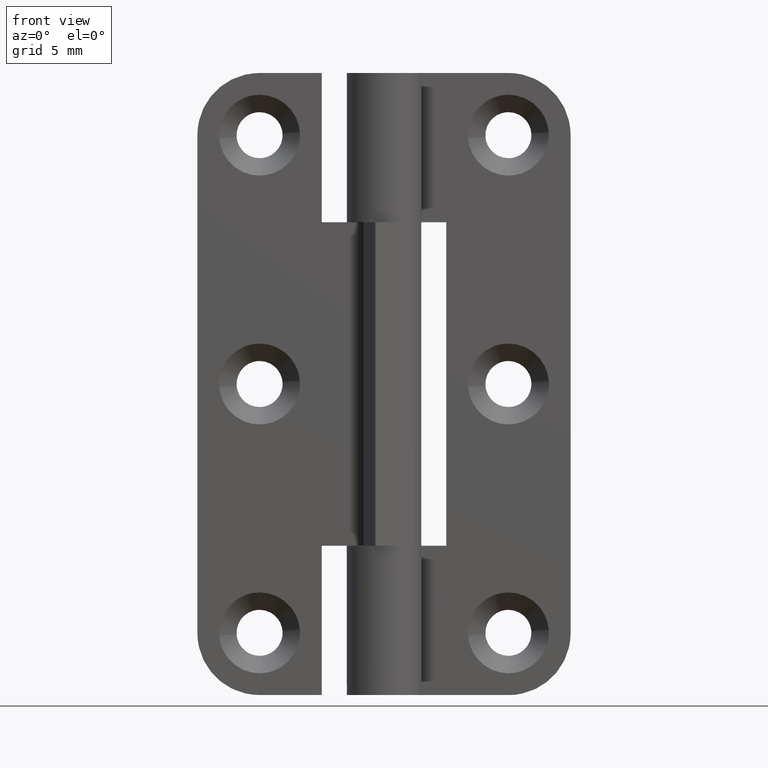
[diagram: clean part render]
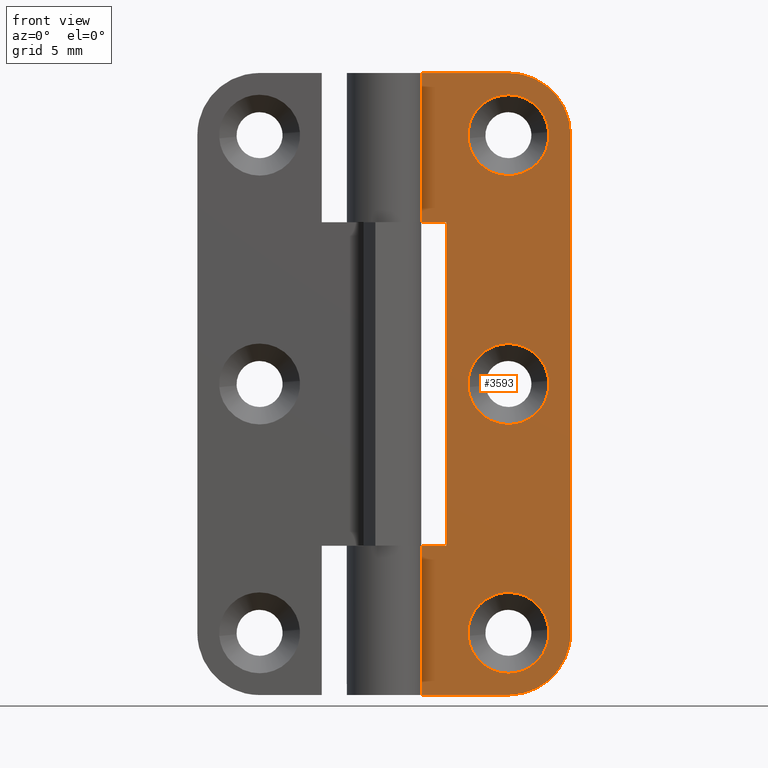
[diagram: same view with one face highlighted and labeled with its STEP entity id]
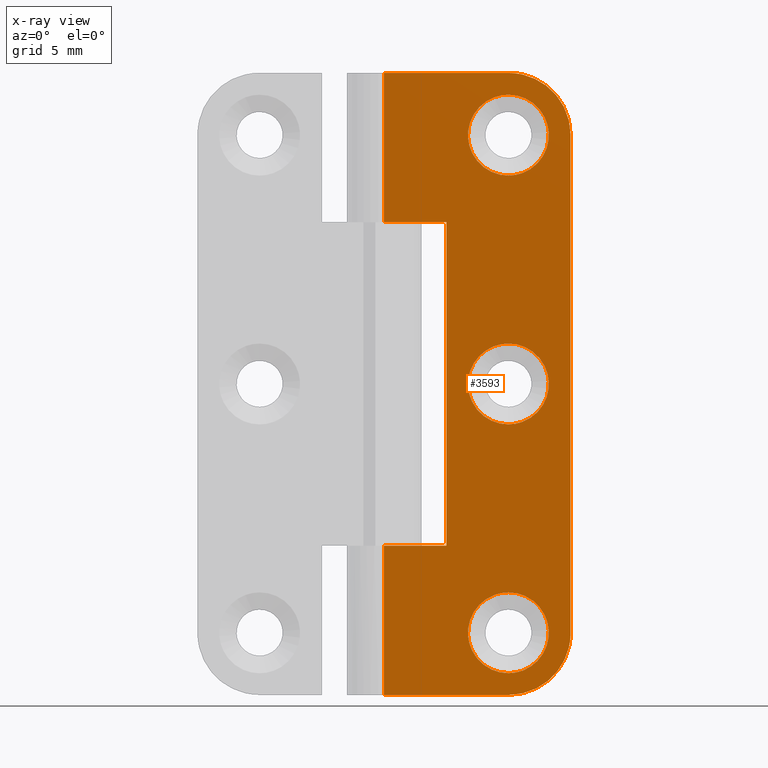
[diagram: x-ray of the same camera — body ghosted, the highlighted face saturated]
A machine part, front view. The second image highlights one B-rep face of the part: STEP entity #3593.
The next image is the same camera in x-ray: the body ghosted, the highlighted face saturated — about 0% of this face is hidden behind the body in this view.
In plain terms, the highlighted face is a freeform B-spline surface patch.
Its self-contained STEP definition (entity closure, byte-faithful):
#2128=CARTESIAN_POINT('',(13.239981334640129,1.499999999981075,45.254992061261852));
#2129=VERTEX_POINT('',#2128);
#2135=CARTESIAN_POINT('',(10.0,1.500000000000000,48.250000000000000));
#2136=VERTEX_POINT('',#2135);
#2137=CARTESIAN_POINT('',(10.0,1.500000000000000,48.250000000000000));
#2138=CARTESIAN_POINT('',(13.004269097619700,1.500000000000001,48.250000000000007));
#2139=CARTESIAN_POINT('',(13.239981334640134,1.499999999981076,45.254992061261845));
#2147=(BOUNDED_CURVE()B_SPLINE_CURVE(2,(#2137,#2138,#2139),.UNSPECIFIED.,.F.,.U.)B_SPLINE_CURVE_WITH_KNOTS((3,3),(0.0,0.236331300617438),.UNSPECIFIED.)CURVE()GEOMETRIC_REPRESENTATION_ITEM()RATIONAL_B_SPLINE_CURVE((1.0,0.723120658623156,0.969723356139825))REPRESENTATION_ITEM(''));
#2148=EDGE_CURVE('',#2136,#2129,#2147,.T.);
#2150=CARTESIAN_POINT('',(6.760018665359869,1.499999999981075,44.745007938738162));
#2151=VERTEX_POINT('',#2150);
#2152=CARTESIAN_POINT('',(6.760018665359869,1.499999999981076,44.745007938738155));
#2153=CARTESIAN_POINT('',(6.750000000000002,1.500000000000000,44.872307152079536));
#2154=CARTESIAN_POINT('',(6.750000000000001,1.500000000000000,45.0));
#2155=CARTESIAN_POINT('',(6.750000000000001,1.500000000000000,48.250000000000000));
#2156=CARTESIAN_POINT('',(10.0,1.500000000000000,48.250000000000000));
#2164=(BOUNDED_CURVE()B_SPLINE_CURVE(2,(#2152,#2153,#2154,#2155,#2156),.UNSPECIFIED.,.F.,.U.)B_SPLINE_CURVE_WITH_KNOTS((3,2,3),(0.736331300617438,0.750000000000000,1.0),.UNSPECIFIED.)CURVE()GEOMETRIC_REPRESENTATION_ITEM()RATIONAL_B_SPLINE_CURVE((0.969723356139825,0.983986122563392,1.0,0.707106781186547,1.0))REPRESENTATION_ITEM(''));
#2165=EDGE_CURVE('',#2151,#2136,#2164,.T.);
#2202=CARTESIAN_POINT('',(10.0,1.500000000000000,41.749999999999993));
#2203=VERTEX_POINT('',#2202);
#2204=CARTESIAN_POINT('',(10.0,1.500000000000000,41.749999999999993));
#2205=CARTESIAN_POINT('',(6.995730902380297,1.500000000000000,41.749999999999986));
#2206=CARTESIAN_POINT('',(6.760018665359868,1.499999999981075,44.745007938738155));
#2214=(BOUNDED_CURVE()B_SPLINE_CURVE(2,(#2204,#2205,#2206),.UNSPECIFIED.,.F.,.U.)B_SPLINE_CURVE_WITH_KNOTS((3,3),(0.500000000000000,0.736331300617438),.UNSPECIFIED.)CURVE()GEOMETRIC_REPRESENTATION_ITEM()RATIONAL_B_SPLINE_CURVE((1.0,0.723120658623155,0.969723356139826))REPRESENTATION_ITEM(''));
#2215=EDGE_CURVE('',#2203,#2151,#2214,.T.);
#2217=CARTESIAN_POINT('',(13.239981334640133,1.499999999981075,45.254992061261845));
#2218=CARTESIAN_POINT('',(13.250000000000000,1.500000000000000,45.127692847920464));
#2219=CARTESIAN_POINT('',(13.250000000000000,1.500000000000000,45.0));
#2220=CARTESIAN_POINT('',(13.250000000000004,1.500000000000000,41.749999999999986));
#2221=CARTESIAN_POINT('',(10.0,1.500000000000000,41.749999999999993));
#2229=(BOUNDED_CURVE()B_SPLINE_CURVE(2,(#2217,#2218,#2219,#2220,#2221),.UNSPECIFIED.,.F.,.U.)B_SPLINE_CURVE_WITH_KNOTS((3,2,3),(0.236331300617438,0.250000000000000,0.500000000000000),.UNSPECIFIED.)CURVE()GEOMETRIC_REPRESENTATION_ITEM()RATIONAL_B_SPLINE_CURVE((0.969723356139825,0.983986122563392,1.0,0.707106781186547,1.0))REPRESENTATION_ITEM(''));
#2230=EDGE_CURVE('',#2129,#2203,#2229,.T.);
#2456=CARTESIAN_POINT('',(13.239981334640129,1.499999999981076,25.254992061261849));
#2457=VERTEX_POINT('',#2456);
#2463=CARTESIAN_POINT('',(10.0,1.500000000000000,28.250000000000000));
#2464=VERTEX_POINT('',#2463);
#2465=CARTESIAN_POINT('',(10.0,1.500000000000000,28.250000000000000));
#2466=CARTESIAN_POINT('',(13.004269097619696,1.500000000000000,28.250000000000004));
#2467=CARTESIAN_POINT('',(13.239981334640129,1.499999999981075,25.254992061261845));
#2475=(BOUNDED_CURVE()B_SPLINE_CURVE(2,(#2465,#2466,#2467),.UNSPECIFIED.,.F.,.U.)B_SPLINE_CURVE_WITH_KNOTS((3,3),(0.0,0.236331300617438),.UNSPECIFIED.)CURVE()GEOMETRIC_REPRESENTATION_ITEM()RATIONAL_B_SPLINE_CURVE((1.0,0.723120658623156,0.969723356139825))REPRESENTATION_ITEM(''));
#2476=EDGE_CURVE('',#2464,#2457,#2475,.T.);
#2478=CARTESIAN_POINT('',(6.760018665359871,1.499999999981076,24.745007938738159));
#2479=VERTEX_POINT('',#2478);
#2480=CARTESIAN_POINT('',(6.760018665359871,1.499999999981076,24.745007938738159));
#2481=CARTESIAN_POINT('',(6.750000000000002,1.500000000000000,24.872307152079532));
#2482=CARTESIAN_POINT('',(6.750000000000001,1.500000000000000,25.0));
#2483=CARTESIAN_POINT('',(6.750000000000001,1.500000000000000,28.250000000000004));
#2484=CARTESIAN_POINT('',(10.0,1.500000000000000,28.250000000000000));
#2492=(BOUNDED_CURVE()B_SPLINE_CURVE(2,(#2480,#2481,#2482,#2483,#2484),.UNSPECIFIED.,.F.,.U.)B_SPLINE_CURVE_WITH_KNOTS((3,2,3),(0.736331300617438,0.750000000000000,1.0),.UNSPECIFIED.)CURVE()GEOMETRIC_REPRESENTATION_ITEM()RATIONAL_B_SPLINE_CURVE((0.969723356139825,0.983986122563391,1.0,0.707106781186547,1.0))REPRESENTATION_ITEM(''));
#2493=EDGE_CURVE('',#2479,#2464,#2492,.T.);
#2530=CARTESIAN_POINT('',(10.0,1.500000000000000,21.750000000000000));
#2531=VERTEX_POINT('',#2530);
#2532=CARTESIAN_POINT('',(10.0,1.500000000000000,21.750000000000000));
#2533=CARTESIAN_POINT('',(6.995730902380297,1.500000000000000,21.750000000000007));
#2534=CARTESIAN_POINT('',(6.760018665359871,1.499999999981076,24.745007938738155));
#2542=(BOUNDED_CURVE()B_SPLINE_CURVE(2,(#2532,#2533,#2534),.UNSPECIFIED.,.F.,.U.)B_SPLINE_CURVE_WITH_KNOTS((3,3),(0.500000000000000,0.736331300617438),.UNSPECIFIED.)CURVE()GEOMETRIC_REPRESENTATION_ITEM()RATIONAL_B_SPLINE_CURVE((1.0,0.723120658623155,0.969723356139826))REPRESENTATION_ITEM(''));
#2543=EDGE_CURVE('',#2531,#2479,#2542,.T.);
#2545=CARTESIAN_POINT('',(13.239981334640131,1.499999999981076,25.254992061261845));
#2546=CARTESIAN_POINT('',(13.250000000000005,1.500000000000000,25.127692847920468));
#2547=CARTESIAN_POINT('',(13.250000000000000,1.500000000000000,25.0));
#2548=CARTESIAN_POINT('',(13.250000000000004,1.500000000000000,21.750000000000004));
#2549=CARTESIAN_POINT('',(10.0,1.500000000000000,21.750000000000000));
#2557=(BOUNDED_CURVE()B_SPLINE_CURVE(2,(#2545,#2546,#2547,#2548,#2549),.UNSPECIFIED.,.F.,.U.)B_SPLINE_CURVE_WITH_KNOTS((3,2,3),(0.236331300617438,0.250000000000000,0.500000000000000),.UNSPECIFIED.)CURVE()GEOMETRIC_REPRESENTATION_ITEM()RATIONAL_B_SPLINE_CURVE((0.969723356139824,0.983986122563391,1.0,0.707106781186547,1.0))REPRESENTATION_ITEM(''));
#2558=EDGE_CURVE('',#2457,#2531,#2557,.T.);
#2784=CARTESIAN_POINT('',(13.239981334640129,1.499999999981076,5.254992061261946));
#2785=VERTEX_POINT('',#2784);
#2791=CARTESIAN_POINT('',(10.0,1.500000000000000,8.250000000000100));
#2792=VERTEX_POINT('',#2791);
#2793=CARTESIAN_POINT('',(10.0,1.500000000000000,8.250000000000100));
#2794=CARTESIAN_POINT('',(13.004269097619696,1.500000000000000,8.250000000000101));
#2795=CARTESIAN_POINT('',(13.239981334640129,1.499999999981075,5.254992061261947));
#2803=(BOUNDED_CURVE()B_SPLINE_CURVE(2,(#2793,#2794,#2795),.UNSPECIFIED.,.F.,.U.)B_SPLINE_CURVE_WITH_KNOTS((3,3),(0.0,0.236331300617438),.UNSPECIFIED.)CURVE()GEOMETRIC_REPRESENTATION_ITEM()RATIONAL_B_SPLINE_CURVE((1.0,0.723120658623156,0.969723356139825))REPRESENTATION_ITEM(''));
#2804=EDGE_CURVE('',#2792,#2785,#2803,.T.);
#2806=CARTESIAN_POINT('',(6.760018665359870,1.499999999981076,4.745007938738254));
#2807=VERTEX_POINT('',#2806);
#2808=CARTESIAN_POINT('',(6.760018665359870,1.499999999981076,4.745007938738254));
#2809=CARTESIAN_POINT('',(6.750000000000002,1.500000000000000,4.872307152079638));
#2810=CARTESIAN_POINT('',(6.750000000000001,1.500000000000000,5.000000000000100));
#2811=CARTESIAN_POINT('',(6.750000000000001,1.500000000000000,8.250000000000100));
#2812=CARTESIAN_POINT('',(10.0,1.500000000000000,8.250000000000100));
#2820=(BOUNDED_CURVE()B_SPLINE_CURVE(2,(#2808,#2809,#2810,#2811,#2812),.UNSPECIFIED.,.F.,.U.)B_SPLINE_CURVE_WITH_KNOTS((3,2,3),(0.736331300617438,0.750000000000000,1.0),.UNSPECIFIED.)CURVE()GEOMETRIC_REPRESENTATION_ITEM()RATIONAL_B_SPLINE_CURVE((0.969723356139825,0.983986122563391,1.0,0.707106781186547,1.0))REPRESENTATION_ITEM(''));
#2821=EDGE_CURVE('',#2807,#2792,#2820,.T.);
#2858=CARTESIAN_POINT('',(10.0,1.500000000000000,1.750000000000100));
#2859=VERTEX_POINT('',#2858);
#2860=CARTESIAN_POINT('',(10.0,1.500000000000000,1.750000000000100));
#2861=CARTESIAN_POINT('',(6.995730902380297,1.500000000000000,1.750000000000100));
#2862=CARTESIAN_POINT('',(6.760018665359870,1.499999999981076,4.745007938738254));
#2870=(BOUNDED_CURVE()B_SPLINE_CURVE(2,(#2860,#2861,#2862),.UNSPECIFIED.,.F.,.U.)B_SPLINE_CURVE_WITH_KNOTS((3,3),(0.500000000000000,0.736331300617438),.UNSPECIFIED.)CURVE()GEOMETRIC_REPRESENTATION_ITEM()RATIONAL_B_SPLINE_CURVE((1.0,0.723120658623155,0.969723356139826))REPRESENTATION_ITEM(''));
#2871=EDGE_CURVE('',#2859,#2807,#2870,.T.);
#2873=CARTESIAN_POINT('',(13.239981334640131,1.499999999981076,5.254992061261947));
#2874=CARTESIAN_POINT('',(13.250000000000005,1.500000000000000,5.127692847920563));
#2875=CARTESIAN_POINT('',(13.250000000000000,1.500000000000000,5.000000000000100));
#2876=CARTESIAN_POINT('',(13.250000000000004,1.500000000000000,1.750000000000100));
#2877=CARTESIAN_POINT('',(10.0,1.500000000000000,1.750000000000100));
#2885=(BOUNDED_CURVE()B_SPLINE_CURVE(2,(#2873,#2874,#2875,#2876,#2877),.UNSPECIFIED.,.F.,.U.)B_SPLINE_CURVE_WITH_KNOTS((3,2,3),(0.236331300617438,0.250000000000000,0.500000000000000),.UNSPECIFIED.)CURVE()GEOMETRIC_REPRESENTATION_ITEM()RATIONAL_B_SPLINE_CURVE((0.969723356139824,0.983986122563391,1.0,0.707106781186547,1.0))REPRESENTATION_ITEM(''));
#2886=EDGE_CURVE('',#2785,#2859,#2885,.T.);
#2906=CARTESIAN_POINT('',(15.0,1.500000000000000,45.0));
#2907=VERTEX_POINT('',#2906);
#2908=CARTESIAN_POINT('',(10.0,1.500000000000000,50.0));
#2909=VERTEX_POINT('',#2908);
#2910=CARTESIAN_POINT('',(15.0,1.500000000000000,45.0));
#2911=CARTESIAN_POINT('',(14.999999999999995,1.500000000000000,49.999999999999986));
#2912=CARTESIAN_POINT('',(10.0,1.500000000000000,49.999999999999993));
#2920=(BOUNDED_CURVE()B_SPLINE_CURVE(2,(#2910,#2911,#2912),.UNSPECIFIED.,.F.,.U.)CURVE()GEOMETRIC_REPRESENTATION_ITEM()QUASI_UNIFORM_CURVE()RATIONAL_B_SPLINE_CURVE((1.0,0.707106781186548,1.0))REPRESENTATION_ITEM(''));
#2921=EDGE_CURVE('',#2907,#2909,#2920,.T.);
#2967=CARTESIAN_POINT('',(10.0,1.500000000000000,0.0));
#2968=VERTEX_POINT('',#2967);
#2969=CARTESIAN_POINT('',(15.0,1.500000000000000,5.0));
#2970=VERTEX_POINT('',#2969);
#2971=CARTESIAN_POINT('',(10.0,1.500000000000000,0.0));
#2972=CARTESIAN_POINT('',(14.999999999999995,1.500000000000000,0.0));
#2973=CARTESIAN_POINT('',(15.0,1.500000000000000,5.0));
#2981=(BOUNDED_CURVE()B_SPLINE_CURVE(2,(#2971,#2972,#2973),.UNSPECIFIED.,.F.,.U.)CURVE()GEOMETRIC_REPRESENTATION_ITEM()QUASI_UNIFORM_CURVE()RATIONAL_B_SPLINE_CURVE((1.0,0.707106781186548,1.0))REPRESENTATION_ITEM(''));
#2982=EDGE_CURVE('',#2968,#2970,#2981,.T.);
#3049=CARTESIAN_POINT('',(-2.755364E-016,1.500000000000000,12.000000000000121));
#3050=VERTEX_POINT('',#3049);
#3070=CARTESIAN_POINT('',(4.999999999999901,1.499999999999946,12.0));
#3071=VERTEX_POINT('',#3070);
#3072=CARTESIAN_POINT('',(4.999999999999901,1.499999999999946,12.0));
#3073=CARTESIAN_POINT('',(-2.755364E-016,1.500000000000000,12.000000000000121));
#3074=QUASI_UNIFORM_CURVE('',1,(#3072,#3073),.UNSPECIFIED.,.F.,.U.);
#3075=EDGE_CURVE('',#3071,#3050,#3074,.T.);
#3099=CARTESIAN_POINT('',(-2.755364E-016,1.500000000000000,38.0));
#3100=VERTEX_POINT('',#3099);
#3155=CARTESIAN_POINT('',(4.999999999999901,1.499999999999946,38.0));
#3156=VERTEX_POINT('',#3155);
#3162=CARTESIAN_POINT('',(-2.755364E-016,1.500000000000000,38.0));
#3163=CARTESIAN_POINT('',(4.999999999999901,1.499999999999946,38.0));
#3164=QUASI_UNIFORM_CURVE('',1,(#3162,#3163),.UNSPECIFIED.,.F.,.U.);
#3165=EDGE_CURVE('',#3100,#3156,#3164,.T.);
#3182=CARTESIAN_POINT('',(4.999999999999901,1.499999999999946,38.0));
#3183=CARTESIAN_POINT('',(4.999999999999901,1.499999999999946,12.0));
#3184=QUASI_UNIFORM_CURVE('',1,(#3182,#3183),.UNSPECIFIED.,.F.,.U.);
#3185=EDGE_CURVE('',#3156,#3071,#3184,.T.);
#3203=CARTESIAN_POINT('',(-2.755364E-016,1.500000000000000,0.0));
#3204=VERTEX_POINT('',#3203);
#3205=CARTESIAN_POINT('',(-2.755364E-016,1.500000000000000,0.0));
#3206=CARTESIAN_POINT('',(10.0,1.500000000000000,0.0));
#3207=QUASI_UNIFORM_CURVE('',1,(#3205,#3206),.UNSPECIFIED.,.F.,.U.);
#3208=EDGE_CURVE('',#3204,#2968,#3207,.T.);
#3265=CARTESIAN_POINT('',(-2.755364E-016,1.500000000000000,50.0));
#3266=VERTEX_POINT('',#3265);
#3267=CARTESIAN_POINT('',(-2.755364E-016,1.500000000000000,50.0));
#3268=CARTESIAN_POINT('',(10.0,1.500000000000000,50.0));
#3269=QUASI_UNIFORM_CURVE('',1,(#3267,#3268),.UNSPECIFIED.,.F.,.U.);
#3270=EDGE_CURVE('',#3266,#2909,#3269,.T.);
#3352=CARTESIAN_POINT('',(-2.755364E-016,1.500000000000000,12.000000000000121));
#3353=CARTESIAN_POINT('',(-2.755364E-016,1.500000000000000,0.0));
#3354=QUASI_UNIFORM_CURVE('',1,(#3352,#3353),.UNSPECIFIED.,.F.,.U.);
#3355=EDGE_CURVE('',#3050,#3204,#3354,.T.);
#3425=CARTESIAN_POINT('',(15.0,1.500000000000000,45.0));
#3426=CARTESIAN_POINT('',(15.0,1.500000000000000,5.0));
#3427=QUASI_UNIFORM_CURVE('',1,(#3425,#3426),.UNSPECIFIED.,.F.,.U.);
#3428=EDGE_CURVE('',#2907,#2970,#3427,.T.);
#3468=CARTESIAN_POINT('',(-2.755364E-016,1.500000000000000,50.0));
#3469=CARTESIAN_POINT('',(-2.755364E-016,1.500000000000000,38.0));
#3470=QUASI_UNIFORM_CURVE('',1,(#3468,#3469),.UNSPECIFIED.,.F.,.U.);
#3471=EDGE_CURVE('',#3266,#3100,#3470,.T.);
#3558=CARTESIAN_POINT('',(-0.749249970927090,1.500000000000000,-2.497499903090299));
#3559=CARTESIAN_POINT('',(-0.749249970927090,1.500000000000000,52.497501244194808));
#3560=CARTESIAN_POINT('',(15.749250373258439,1.500000000000000,-2.497499903090299));
#3561=CARTESIAN_POINT('',(15.749250373258439,1.500000000000000,52.497501244194808));
#3562=B_SPLINE_SURFACE_WITH_KNOTS('',1,1,((#3558,#3560),(#3559,#3561)),.UNSPECIFIED.,.F.,.F.,.U.,(2,2),(2,2),(0.0,54.995001147285109),(0.0,16.498500344185530),.UNSPECIFIED.);
#3563=ORIENTED_EDGE('',*,*,#3208,.T.);
#3564=ORIENTED_EDGE('',*,*,#2982,.T.);
#3565=ORIENTED_EDGE('',*,*,#3428,.F.);
#3566=ORIENTED_EDGE('',*,*,#2921,.T.);
#3567=ORIENTED_EDGE('',*,*,#3270,.F.);
#3568=ORIENTED_EDGE('',*,*,#3471,.T.);
#3569=ORIENTED_EDGE('',*,*,#3165,.T.);
#3570=ORIENTED_EDGE('',*,*,#3185,.T.);
#3571=ORIENTED_EDGE('',*,*,#3075,.T.);
#3572=ORIENTED_EDGE('',*,*,#3355,.T.);
#3573=EDGE_LOOP('',(#3563,#3564,#3565,#3566,#3567,#3568,#3569,#3570,#3571,#3572));
#3574=FACE_OUTER_BOUND('',#3573,.T.);
#3575=ORIENTED_EDGE('',*,*,#2871,.T.);
#3576=ORIENTED_EDGE('',*,*,#2821,.T.);
#3577=ORIENTED_EDGE('',*,*,#2804,.T.);
#3578=ORIENTED_EDGE('',*,*,#2886,.T.);
#3579=EDGE_LOOP('',(#3575,#3576,#3577,#3578));
#3580=FACE_BOUND('',#3579,.T.);
#3581=ORIENTED_EDGE('',*,*,#2543,.T.);
#3582=ORIENTED_EDGE('',*,*,#2493,.T.);
#3583=ORIENTED_EDGE('',*,*,#2476,.T.);
#3584=ORIENTED_EDGE('',*,*,#2558,.T.);
#3585=EDGE_LOOP('',(#3581,#3582,#3583,#3584));
#3586=FACE_BOUND('',#3585,.T.);
#3587=ORIENTED_EDGE('',*,*,#2215,.T.);
#3588=ORIENTED_EDGE('',*,*,#2165,.T.);
#3589=ORIENTED_EDGE('',*,*,#2148,.T.);
#3590=ORIENTED_EDGE('',*,*,#2230,.T.);
#3591=EDGE_LOOP('',(#3587,#3588,#3589,#3590));
#3592=FACE_BOUND('',#3591,.T.);
#3593=ADVANCED_FACE('',(#3574,#3580,#3586,#3592),#3562,.F.);